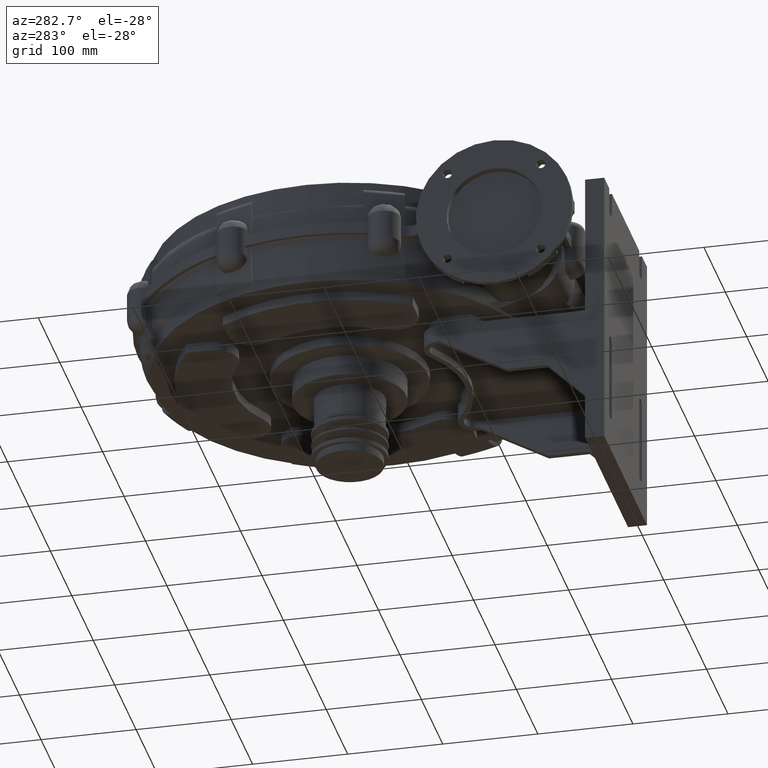
[diagram: clean part render]
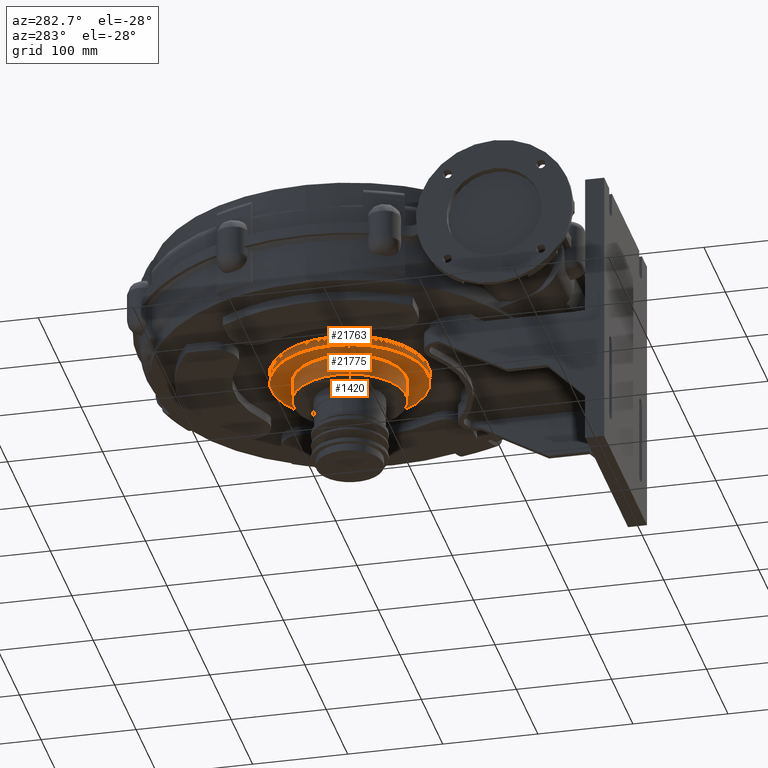
[diagram: same view with one multi-face feature highlighted, each face labeled with its STEP entity id]
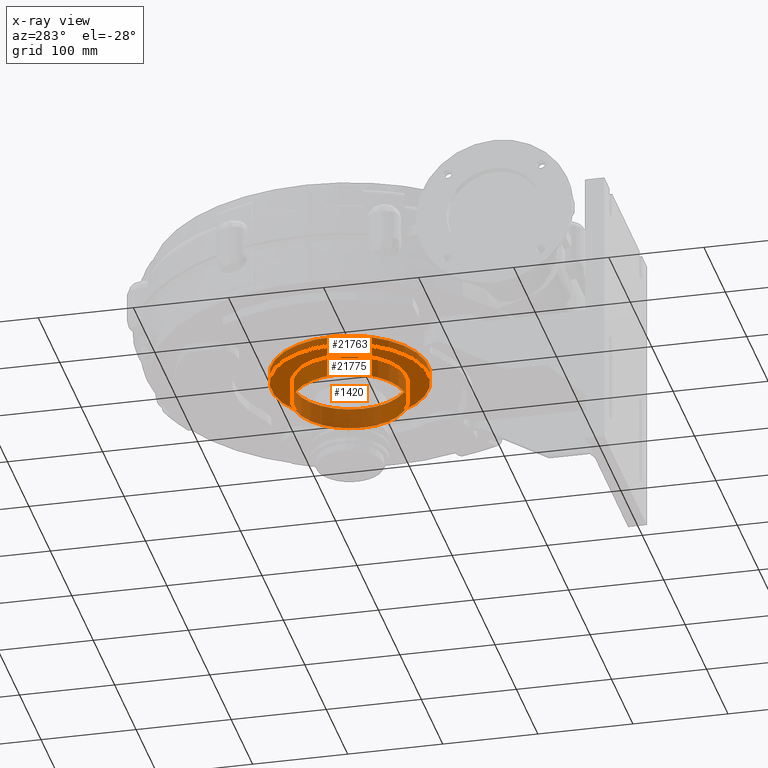
[diagram: x-ray of the same camera — body ghosted, the whole feature saturated]
A machine part, auxiliary view. The highlighted faces form ONE feature: a stepped (counterbored) hole: 2 coaxial cylindrical walls of radii 59.5 -> 82.5 mm joined by 1 annular planar shoulder face(s). The faces share edges in the B-rep.
The next image is the same camera in x-ray: the body ghosted and the whole hole feature saturated, so the bore chain is visible through the body.
Their STEP definitions:
[1] entity #21763 (Cylinder):
#21736=CARTESIAN_POINT('',(-4.218847E-014,-14.999999999999986,27.999999999999574));
#21737=DIRECTION('',(-8.099377E-016,-5.144112E-016,-1.0));
#21738=DIRECTION('',(1.0,0.0,0.0));
#21739=AXIS2_PLACEMENT_3D('',#21736,#21737,#21738);
#21740=CYLINDRICAL_SURFACE('',#21739,82.5);
#21741=CARTESIAN_POINT('',(-82.500000000000057,-14.999999999999986,17.999999999999634));
#21742=VERTEX_POINT('',#21741);
#21743=CARTESIAN_POINT('',(-5.107026E-014,-14.999999999999991,17.999999999999574));
#21744=DIRECTION('',(0.0,0.0,1.0));
#21745=DIRECTION('',(1.0,0.0,0.0));
#21746=AXIS2_PLACEMENT_3D('',#21743,#21744,#21745);
#21747=CIRCLE('',#21746,82.5);
#21748=EDGE_CURVE('',#21742,#21742,#21747,.T.);
#21749=ORIENTED_EDGE('',*,*,#21748,.T.);
#21750=EDGE_LOOP('',(#21749));
#21751=FACE_OUTER_BOUND('',#21750,.T.);
#21752=CARTESIAN_POINT('',(-82.500000000000028,-14.99999999999998,27.999999999999634));
#21753=VERTEX_POINT('',#21752);
#21754=CARTESIAN_POINT('',(-4.218847E-014,-14.999999999999986,27.999999999999574));
#21755=DIRECTION('',(0.0,0.0,1.0));
#21756=DIRECTION('',(1.0,0.0,0.0));
#21757=AXIS2_PLACEMENT_3D('',#21754,#21755,#21756);
#21758=CIRCLE('',#21757,82.5);
#21759=EDGE_CURVE('',#21753,#21753,#21758,.T.);
#21760=ORIENTED_EDGE('',*,*,#21759,.F.);
#21761=EDGE_LOOP('',(#21760));
#21762=FACE_BOUND('',#21761,.T.);
#21763=ADVANCED_FACE('',(#21751,#21762),#21740,.T.);
[2] entity #1420 (Cylinder):
#1393=CARTESIAN_POINT('',(1.443290E-014,-14.99999999999998,17.999999999999943));
#1394=DIRECTION('',(-7.681254E-016,-5.144112E-016,-1.0));
#1395=DIRECTION('',(1.0,0.0,0.0));
#1396=AXIS2_PLACEMENT_3D('',#1393,#1394,#1395);
#1397=CYLINDRICAL_SURFACE('',#1396,59.5);
#1398=CARTESIAN_POINT('',(-59.5,-15.000000000000007,-4.000000000000021));
#1399=VERTEX_POINT('',#1398);
#1400=CARTESIAN_POINT('',(-2.220446E-015,-14.999999999999991,-4.000000000000075));
#1401=DIRECTION('',(0.0,0.0,1.0));
#1402=DIRECTION('',(1.0,0.0,0.0));
#1403=AXIS2_PLACEMENT_3D('',#1400,#1401,#1402);
#1404=CIRCLE('',#1403,59.5);
#1405=EDGE_CURVE('',#1399,#1399,#1404,.T.);
#1406=ORIENTED_EDGE('',*,*,#1405,.T.);
#1407=EDGE_LOOP('',(#1406));
#1408=FACE_OUTER_BOUND('',#1407,.T.);
#1409=CARTESIAN_POINT('',(-59.499999999999986,-14.999999999999996,17.999999999999989));
#1410=VERTEX_POINT('',#1409);
#1411=CARTESIAN_POINT('',(1.443290E-014,-14.99999999999998,17.999999999999574));
#1412=DIRECTION('',(0.0,0.0,1.0));
#1413=DIRECTION('',(1.0,0.0,0.0));
#1414=AXIS2_PLACEMENT_3D('',#1411,#1412,#1413);
#1415=CIRCLE('',#1414,59.5);
#1416=EDGE_CURVE('',#1410,#1410,#1415,.T.);
#1417=ORIENTED_EDGE('',*,*,#1416,.F.);
#1418=EDGE_LOOP('',(#1417));
#1419=FACE_BOUND('',#1418,.T.);
#1420=ADVANCED_FACE('',(#1408,#1419),#1397,.T.);
[3] entity #21775 (Plane):
#1409=CARTESIAN_POINT('',(-59.499999999999986,-14.999999999999996,17.999999999999989));
#1410=VERTEX_POINT('',#1409);
#1411=CARTESIAN_POINT('',(1.443290E-014,-14.99999999999998,17.999999999999574));
#1412=DIRECTION('',(0.0,0.0,1.0));
#1413=DIRECTION('',(1.0,0.0,0.0));
#1414=AXIS2_PLACEMENT_3D('',#1411,#1412,#1413);
#1415=CIRCLE('',#1414,59.5);
#1416=EDGE_CURVE('',#1410,#1410,#1415,.T.);
#21741=CARTESIAN_POINT('',(-82.500000000000057,-14.999999999999986,17.999999999999634));
#21742=VERTEX_POINT('',#21741);
#21743=CARTESIAN_POINT('',(-5.107026E-014,-14.999999999999991,17.999999999999574));
#21744=DIRECTION('',(0.0,0.0,1.0));
#21745=DIRECTION('',(1.0,0.0,0.0));
#21746=AXIS2_PLACEMENT_3D('',#21743,#21744,#21745);
#21747=CIRCLE('',#21746,82.5);
#21748=EDGE_CURVE('',#21742,#21742,#21747,.T.);
#21764=CARTESIAN_POINT('',(-5.107026E-014,-14.999999999999991,17.999999999999574));
#21765=DIRECTION('',(0.0,0.0,1.0));
#21766=DIRECTION('',(1.0,0.0,0.0));
#21767=AXIS2_PLACEMENT_3D('',#21764,#21765,#21766);
#21768=PLANE('',#21767);
#21769=ORIENTED_EDGE('',*,*,#21748,.F.);
#21770=EDGE_LOOP('',(#21769));
#21771=FACE_OUTER_BOUND('',#21770,.T.);
#21772=ORIENTED_EDGE('',*,*,#1416,.T.);
#21773=EDGE_LOOP('',(#21772));
#21774=FACE_BOUND('',#21773,.T.);
#21775=ADVANCED_FACE('',(#21771,#21774),#21768,.F.);